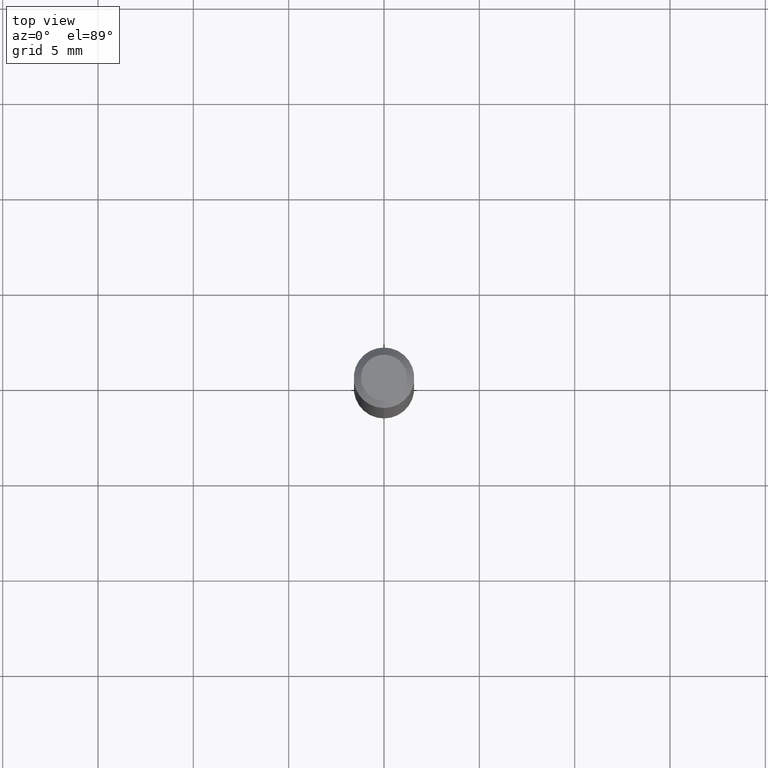
[diagram: clean part render]
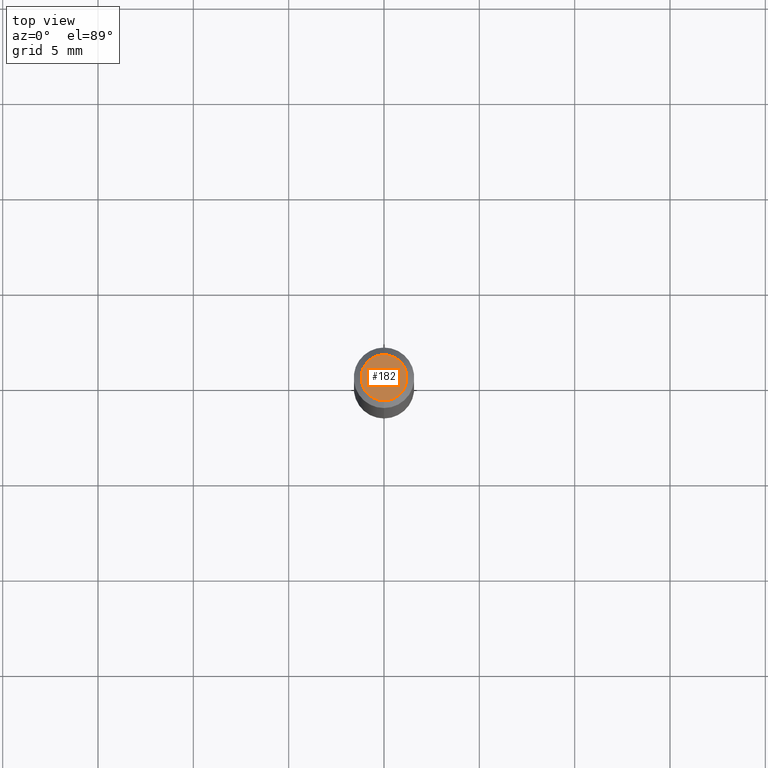
[diagram: same view with one face highlighted and labeled with its STEP entity id]
A machine part, top view. The second image highlights one B-rep face of the part: STEP entity #182.
In plain terms, the highlighted planar face has unit normal (0, -0, -1).
Its self-contained STEP definition (entity closure, byte-faithful):
#2 = DIRECTION ( 'NONE',  ( -6.982962677686266711E-15, -1.000000000000000000, 3.491497944111267737E-15 ) ) ;
#11 = AXIS2_PLACEMENT_3D ( 'NONE', #362, #320, #483 ) ;
#22 = EDGE_CURVE ( 'NONE', #156, #403, #121, .T. ) ;
#70 = ORIENTED_EDGE ( 'NONE', *, *, #76, .T. ) ;
#76 = EDGE_CURVE ( 'NONE', #403, #156, #127, .T. ) ;
#80 = EDGE_LOOP ( 'NONE', ( #233, #70 ) ) ;
#121 = CIRCLE ( 'NONE', #175, 0.04749999999999999362 ) ;
#127 = CIRCLE ( 'NONE', #11, 0.04749999999999999362 ) ;
#129 = CARTESIAN_POINT ( 'NONE',  ( 1.601760908168073716E-45, -2.286911786129214863E-31, -6.549944530216040568E-17 ) ) ;
#131 = DIRECTION ( 'NONE',  ( -2.445457210788381726E-29, 3.491497944111267737E-15, 1.000000000000000000 ) ) ;
#135 = PLANE ( 'NONE',  #332 ) ;
#145 = CARTESIAN_POINT ( 'NONE',  ( -3.773273898774340269E-16, -0.04749999999999999362, 1.003467070431247921E-16 ) ) ;
#156 = VERTEX_POINT ( 'NONE', #255 ) ;
#175 = AXIS2_PLACEMENT_3D ( 'NONE', #129, #131, #2 ) ;
#182 = ADVANCED_FACE ( 'NONE', ( #499 ), #135, .F. ) ;
#214 = CARTESIAN_POINT ( 'NONE',  ( 3.316907271900976096E-16, 0.04749999999999999362, -1.985958749963654130E-16 ) ) ;
#233 = ORIENTED_EDGE ( 'NONE', *, *, #22, .T. ) ;
#255 = CARTESIAN_POINT ( 'NONE',  ( 3.840629472727447874E-16, 0.04749999999999999362, -2.313455976474456528E-16 ) ) ;
#320 = DIRECTION ( 'NONE',  ( -2.445457210788381726E-29, 3.491497944111267737E-15, 1.000000000000000000 ) ) ;
#332 = AXIS2_PLACEMENT_3D ( 'NONE', #214, #454, #493 ) ;
#362 = CARTESIAN_POINT ( 'NONE',  ( 1.601760908168073716E-45, -2.286911786129214863E-31, -6.549944530216040568E-17 ) ) ;
#403 = VERTEX_POINT ( 'NONE', #145 ) ;
#454 = DIRECTION ( 'NONE',  ( 2.445457210788381165E-29, -3.491497944111267737E-15, -1.000000000000000000 ) ) ;
#483 = DIRECTION ( 'NONE',  ( -6.982962677686266711E-15, -1.000000000000000000, 3.491497944111267737E-15 ) ) ;
#493 = DIRECTION ( 'NONE',  ( 6.982962677686265922E-15, 1.000000000000000000, -3.491497944111267737E-15 ) ) ;
#499 = FACE_OUTER_BOUND ( 'NONE', #80, .T. ) ;